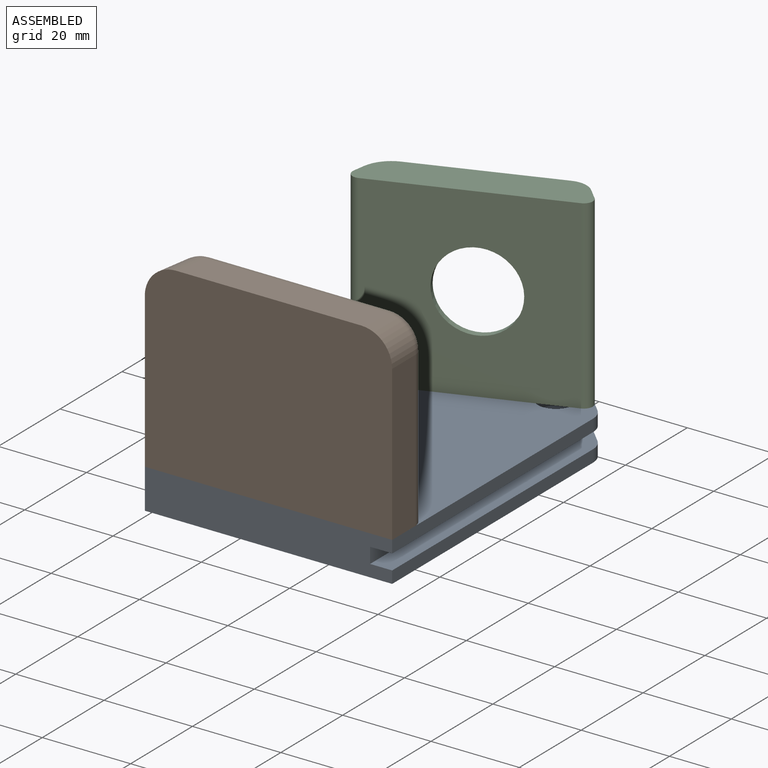
[diagram: assembled view]
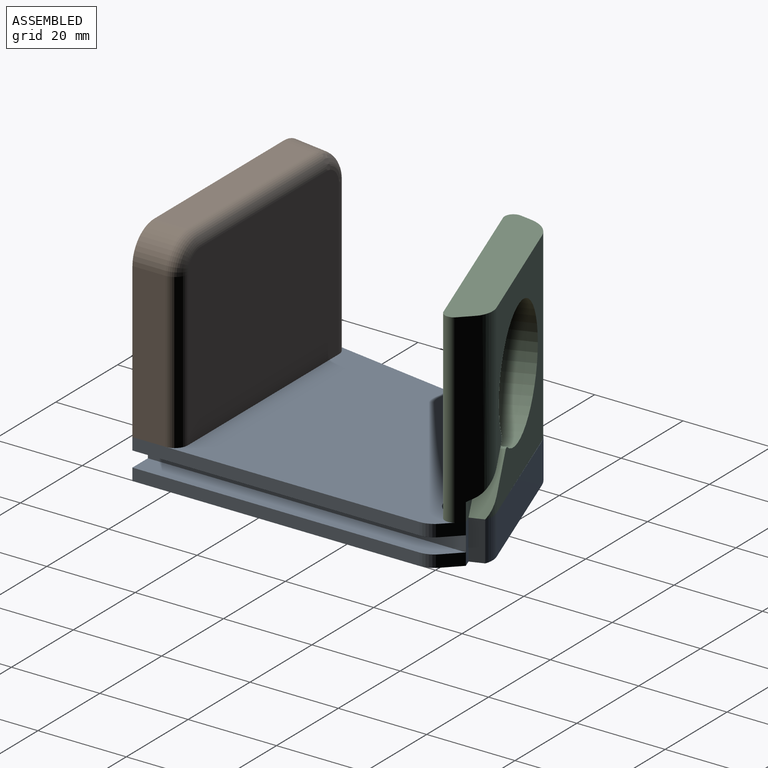
[diagram: assembled view, second angle]
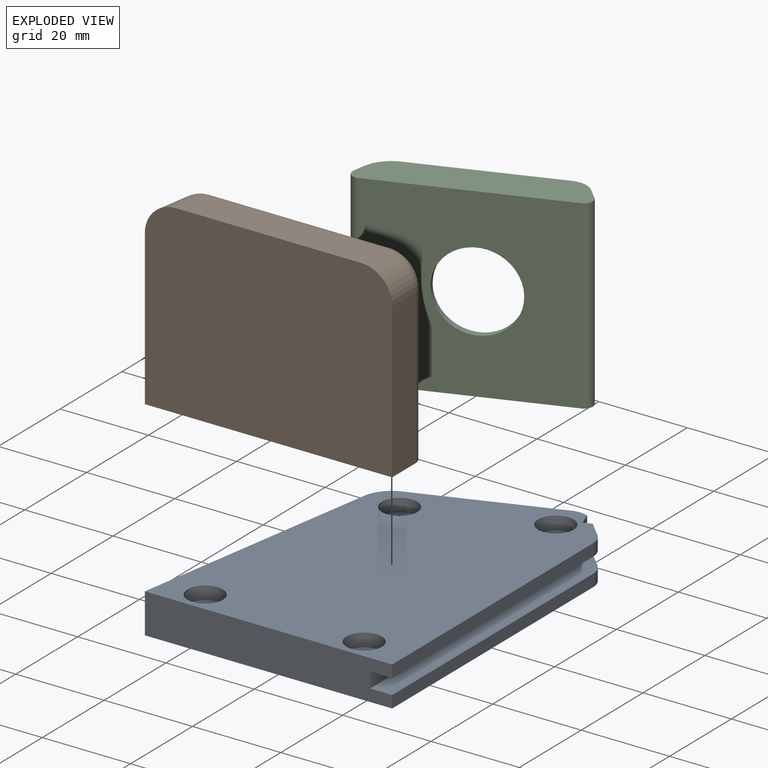
[diagram: exploded view]
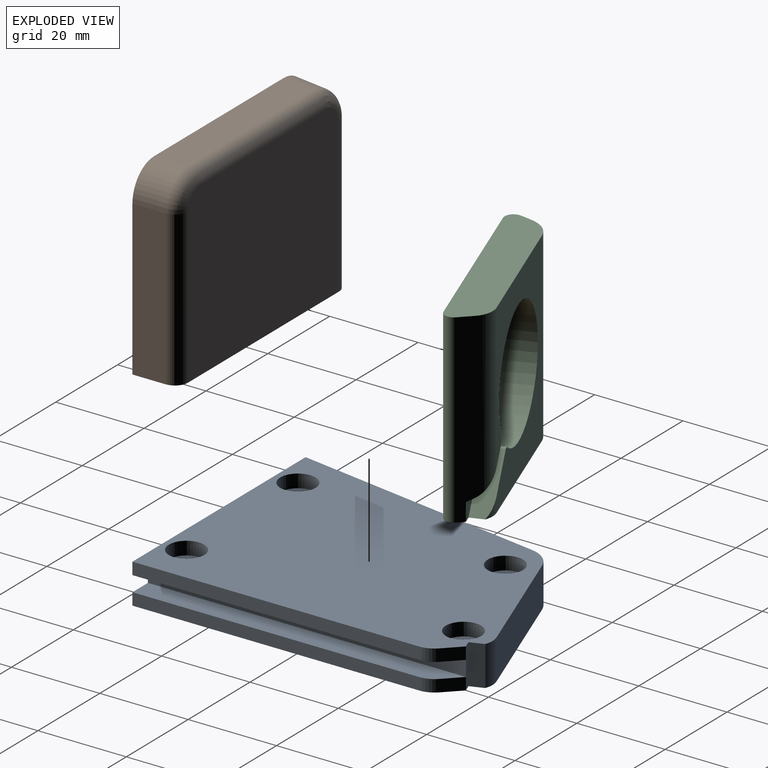
[diagram: exploded view, second angle]
ASSEMBLY  parts=3 mates=3
PART A: 38 faces, bbox 56x74.7x9 mm
  f0: plane 74.7x56mm, normal (0,0,1), area 3281.8mm2, adj f6,f7,f8,f9,f10,f12,f13,f26
  f1: plane 3.52x3.52mm, normal (0.71,0.71,0), area 13.7mm2, adj f2,f11,f26,f36
  f2: plane 71.99x5mm, normal (0,0,1), area 347mm2, adj f1,f4,f5,f9,f26,f36
  f3: plane 71.99x5mm, normal (0,0,-1), area 347mm2, adj f4,f6,f9,f10,f26,f37
  f4: plane 71.98x3.5mm, normal (1,0,0), area 251.9mm2, adj f2,f3,f9,f26
  f5: plane 64.93x2.75mm, normal (1,0,0), area 178.6mm2, adj f2,f9,f11,f36
  f6: plane 64.93x2.75mm, normal (1,0,0), area 178.6mm2, adj f0,f3,f9,f37
  f7: plane 30.73x11.18mm, normal (-0.34,0.94,0), area 294.3mm2, adj f0,f11,f12,f13
  f8: plane 57.74x9.27mm, normal (-0.99,0.16,0), area 526.4mm2, adj f0,f9,f11,f12
  f9: plane 56x9mm, normal (0,-1,0), area 486.5mm2, adj f0,f2,f3,f4,f5,f6,f8,f11
  f10: plane 3.52x3.52mm, normal (0.71,0.71,0), area 13.7mm2, adj f0,f3,f26,f37
  f11: plane 74.7x56mm, normal (0,0,-1), area 3281.8mm2, adj f1,f5,f7,f8,f9,f12,f13,f14
  f12: cylinder r=7mm len=9mm, axis (0,0,-1), area 66.9mm2, adj f0,f7,f8,f11
  f13: cylinder r=5mm len=9mm, axis (0,0,-1), area 32.9mm2, adj f0,f7,f11,f27
  f14: cylinder r=4mm len=8mm, axis (0,0,-1), area 75.4mm2, adj f11,f15
  f15: plane 8x8mm, normal (0,0,-1), area 44.5mm2, adj f14,f23
  f16: cylinder r=4mm len=8mm, axis (0,0,-1), area 75.4mm2, adj f11,f17
  f17: plane 8x8mm, normal (0,0,-1), area 44.5mm2, adj f16,f22
  f18: cylinder r=4mm len=8mm, axis (0,0,-1), area 75.4mm2, adj f11,f19
  f19: plane 8x8mm, normal (0,0,-1), area 44.5mm2, adj f18,f25
  f20: cylinder r=4mm len=8mm, axis (0,0,-1), area 75.4mm2, adj f11,f21
  f21: plane 8x8mm, normal (0,0,-1), area 44.5mm2, adj f20,f24
  f22: cylinder r=1.35mm len=3mm, axis (0,0,-1), area 25.4mm2, adj f17,f35
  f23: cylinder r=1.35mm len=3mm, axis (0,0,-1), area 25.4mm2, adj f15,f33
  f24: cylinder r=1.35mm len=3mm, axis (0,0,-1), area 25.4mm2, adj f21,f31
  f25: cylinder r=1.35mm len=3mm, axis (0,0,-1), area 25.4mm2, adj f19,f29
  f26: plane 9x1.82mm, normal (-0.34,0.94,0), area 17.4mm2, adj f0,f1,f2,f3,f4,f10,f11,f27
  f27: plane 9x3.02mm, normal (0.94,0.34,0), area 28.9mm2, adj f0,f11,f13,f26
  f28: cylinder r=4mm len=8mm, axis (0,0,1), area 75.4mm2, adj f0,f29
  f29: plane 8x8mm, normal (0,0,1), area 44.5mm2, adj f25,f28
  f30: cylinder r=4mm len=8mm, axis (0,0,1), area 75.4mm2, adj f0,f31
  f31: plane 8x8mm, normal (0,0,1), area 44.5mm2, adj f24,f30
  f32: cylinder r=4mm len=8mm, axis (0,0,1), area 75.4mm2, adj f0,f33
  f33: plane 8x8mm, normal (0,0,1), area 44.5mm2, adj f23,f32
  f34: cylinder r=4mm len=8mm, axis (0,0,1), area 75.4mm2, adj f0,f35
  f35: plane 8x8mm, normal (0,0,1), area 44.5mm2, adj f22,f34
  f36: cylinder r=5mm len=3.54mm, axis (0,0,-1), area 10.8mm2, adj f1,f2,f5,f11
  f37: cylinder r=5mm len=3.54mm, axis (0,0,-1), area 10.8mm2, adj f0,f3,f6,f10
PART B: 17 faces, bbox 56.6x11.6x42.6 mm
  f0: plane 35x7.5mm, normal (1,0,0), area 262.5mm2, adj f3,f5,f7,f8
  f1: plane 48.76x39mm, normal (0,1,0), area 1894.6mm2, adj f5,f8,f9,f10,f11,f12
  f2: plane 35x7.98mm, normal (-0.99,0.16,0), area 282.7mm2, adj f3,f5,f6,f10
  f3: plane 56x42mm, normal (0,-1,0), area 2330.8mm2, adj f0,f2,f4,f5,f6,f7
  f4: plane 41.91x7.5mm, normal (0,0,1), area 309.8mm2, adj f3,f6,f7,f11
  f5: plane 56x10.5mm, normal (0,0,-1), area 564.4mm2, adj f0,f1,f2,f3,f8,f10,f13,f15
  f6: cylinder r=7mm len=9.72mm, axis (0.16,0.99,0), area 86.9mm2, adj f2,f3,f4,f12
  f7: cylinder r=7mm len=7.5mm, axis (0,-1,0), area 82.5mm2, adj f0,f3,f4,f9
  f8: cylinder r=3mm len=35mm, axis (0,0,-1), area 164.9mm2, adj f0,f1,f5,f9
  f9: torus R=4mm, axis (0,-1,0), area 43.7mm2, adj f1,f7,f8,f11
  f10: cylinder r=3mm len=35mm, axis (0,0,-1), area 148.2mm2, adj f1,f2,f5,f12
  f11: cylinder r=3mm len=40.71mm, axis (1,0,0), area 191.8mm2, adj f1,f4,f9,f12
  f12: bspline ~8.25x7.33mm, area 40.6mm2, adj f1,f6,f10,f11
  f13: cylinder r=1.35mm len=15mm, axis (0,0,-1), area 127.2mm2, adj f5,f14
  f14: plane 2.7x2.7mm, normal (0,0,-1), area 5.7mm2, adj f13
  f15: cylinder r=1.35mm len=15mm, axis (0,0,-1), area 127.2mm2, adj f5,f16
  f16: plane 2.7x2.7mm, normal (0,0,-1), area 5.7mm2, adj f15
PART C: 23 faces, bbox 46.7x9.1x42 mm
  f0: plane 42x32.72mm, normal (0,1,0), area 721.2mm2, adj f2,f3,f4,f7,f12,f16,f18,f19
  f1: plane 42x3.33mm, normal (0.91,0.42,0), area 146.3mm2, adj f2,f3,f7,f14,f18,f20
  f2: plane 46.71x9.06mm, normal (0,0,-1), area 378.6mm2, adj f0,f1,f4,f5,f6,f8,f10,f12
  f3: cylinder r=5mm len=37.22mm, axis (0,0,1), area 200mm2, adj f0,f1,f7,f18
  f4: cylinder r=5mm len=3.39mm, axis (0,0,1), area 5.9mm2, adj f0,f2,f19
  f5: plane 42x2.44mm, normal (-0.87,0.49,0), area 117.2mm2, adj f2,f7,f12,f13
  f6: plane 42.71x42mm, normal (0,-1,0), area 1539.5mm2, adj f2,f7,f13,f14,f15
  f7: plane 46.71x9.06mm, normal (0,0,1), area 393.7mm2, adj f0,f1,f3,f5,f6,f12,f13,f14
  f8: cylinder r=1.35mm len=15mm, axis (0,0,-1), area 127.2mm2, adj f2,f9
  f9: plane 2.7x2.7mm, normal (0,0,-1), area 5.7mm2, adj f8
  f10: cylinder r=1.35mm len=15mm, axis (0,0,-1), area 127.2mm2, adj f2,f11
  f11: plane 2.7x2.7mm, normal (0,0,-1), area 5.7mm2, adj f10
  f12: cylinder r=7mm len=42mm, axis (0,0,1), area 311.9mm2, adj f0,f2,f5,f7
  f13: cylinder r=2mm len=42mm, axis (0,0,1), area 174.6mm2, adj f2,f5,f6,f7
  f14: cylinder r=2mm len=42mm, axis (0,0,1), area 168.6mm2, adj f1,f2,f6,f7
  f15: cylinder r=9mm len=18mm, axis (0,1,0), area 86.6mm2, adj f6,f17
  f16: cylinder r=14.05mm len=28.11mm, axis (0,1,0), area 638.6mm2, adj f0,f17,f20,f21,f22
  f17: plane 28.1x28.1mm, normal (0,1,0), area 365.7mm2, adj f15,f16
  f18: plane 9.14x9.05mm, normal (-0.71,0,-0.7), area 48.7mm2, adj f0,f1,f3,f20,f22
  f19: plane 10.08x9.98mm, normal (0.71,0,0.7), area 61.9mm2, adj f0,f2,f4,f20,f21
  f20: plane 13.92x12.69mm, normal (0,1,0), area 62.6mm2, adj f1,f2,f16,f18,f19,f21,f22
  f21: plane 4.5x0.79mm, normal (0.08,0,1), area 3.5mm2, adj f0,f16,f19,f20
  f22: plane 4.5x0.75mm, normal (-0.99,0,-0.1), area 3.4mm2, adj f0,f16,f18,f20
PLACE A at identity
PLACE B at identity
PLACE C rot(axis=(0,0,1),20deg) t=(-3.03,12.41,0)mm
MATE revolute C.f10 <-> A.f18  axis (0,0,-1) through (-2.54,12.57,9)mm
MATE fastened B.f15 <-> A.f14  axis (0,0,-1) through (-38.19,-49.89,9)mm
MATE revolute C.f8 <-> A.f20  axis (0,0,-1) through (-30.73,2.31,9)mm
